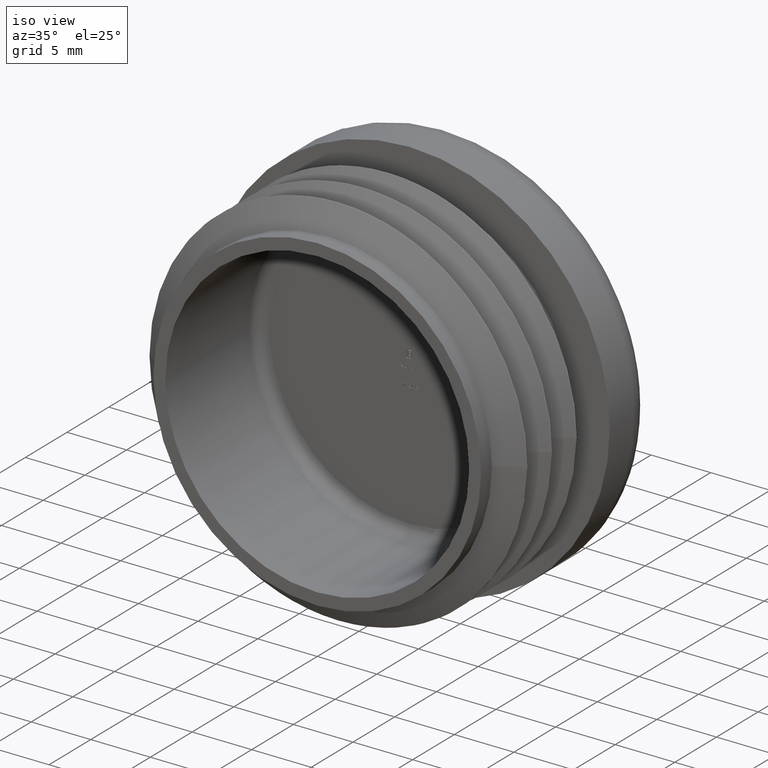
[diagram: clean part render]
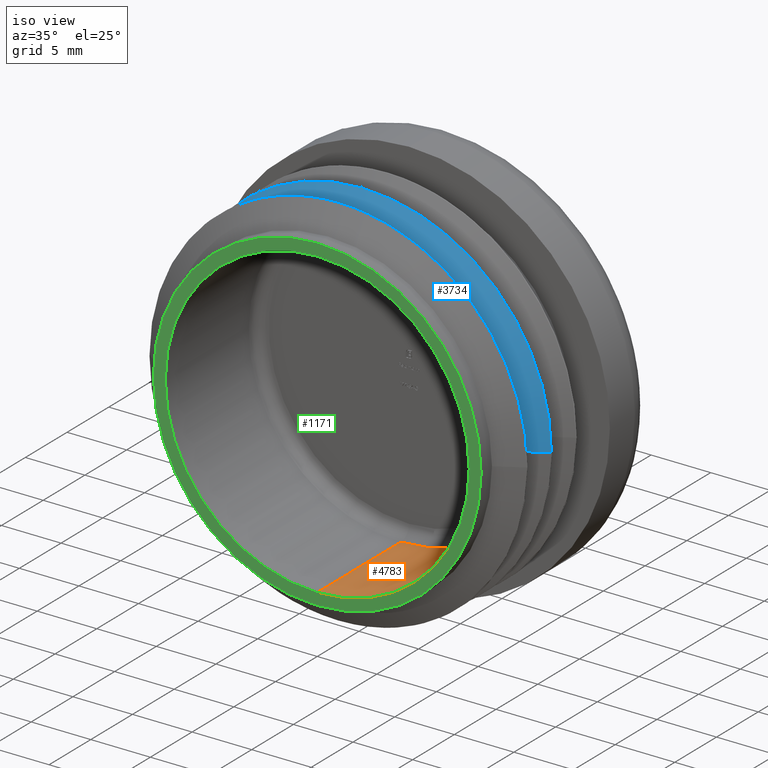
[diagram: same view with three faces highlighted in distinct colors, each labeled with its STEP entity id]
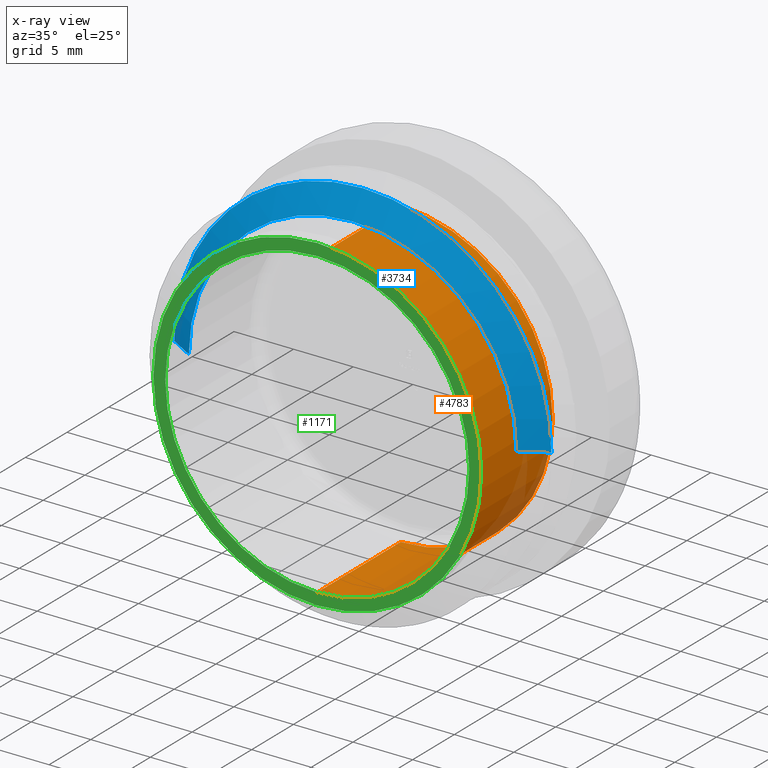
[diagram: x-ray of the same camera — body ghosted, the three highlighted faces saturated]
A machine part, iso view with three faces highlighted in distinct colors.
The next image is the same camera in x-ray (body ghosted, the three faces saturated) — at least one of them is partly hidden behind the body in this view.
Their STEP definitions:

[orange] entity #4783 — the highlighted cylindrical surface (partial cylindrical patch) has radius 12.75 mm, axis along (-0, -1, -0).
#286 = ORIENTED_EDGE ( 'NONE', *, *, #6513, .T. ) ;
#888 = VECTOR ( 'NONE', #9830, 1000.000000000000000 ) ;
#1442 = AXIS2_PLACEMENT_3D ( 'NONE', #3928, #4892, #8704 ) ;
#1631 = LINE ( 'NONE', #2034, #888 ) ;
#1756 = DIRECTION ( 'NONE',  ( -0.000000000000000000, -1.000000000000000000, -0.000000000000000000 ) ) ;
#2034 = CARTESIAN_POINT ( 'NONE',  ( 1.561424668912875111E-15, 11.00000000000000000, 12.75000000000000000 ) ) ;
#2058 = EDGE_CURVE ( 'NONE', #2654, #7031, #1631, .T. ) ;
#2654 = VERTEX_POINT ( 'NONE', #8931 ) ;
#2822 = VECTOR ( 'NONE', #5797, 1000.000000000000000 ) ;
#3169 = VERTEX_POINT ( 'NONE', #6791 ) ;
#3928 = CARTESIAN_POINT ( 'NONE',  ( 0.000000000000000000, 9.999999999999998224, 0.000000000000000000 ) ) ;
#4407 = CIRCLE ( 'NONE', #7420, 12.75000000000000000 ) ;
#4448 = CYLINDRICAL_SURFACE ( 'NONE', #10615, 12.75000000000000000 ) ;
#4783 = ADVANCED_FACE ( 'NONE', ( #11050 ), #4448, .F. ) ;
#4892 = DIRECTION ( 'NONE',  ( 0.000000000000000000, 1.000000000000000000, 0.000000000000000000 ) ) ;
#4925 = DIRECTION ( 'NONE',  ( 0.000000000000000000, 0.000000000000000000, -1.000000000000000000 ) ) ;
#5058 = CARTESIAN_POINT ( 'NONE',  ( 0.000000000000000000, 11.00000000000000000, 0.000000000000000000 ) ) ;
#5083 = ORIENTED_EDGE ( 'NONE', *, *, #10651, .T. ) ;
#5649 = EDGE_LOOP ( 'NONE', ( #6952, #286, #5083, #12298 ) ) ;
#5797 = DIRECTION ( 'NONE',  ( -0.000000000000000000, -1.000000000000000000, -0.000000000000000000 ) ) ;
#6513 = EDGE_CURVE ( 'NONE', #2654, #10774, #11608, .T. ) ;
#6695 = DIRECTION ( 'NONE',  ( 0.000000000000000000, 0.000000000000000000, -1.000000000000000000 ) ) ;
#6791 = CARTESIAN_POINT ( 'NONE',  ( 0.000000000000000000, 0.000000000000000000, -12.75000000000000000 ) ) ;
#6951 = DIRECTION ( 'NONE',  ( -0.000000000000000000, -1.000000000000000000, -0.000000000000000000 ) ) ;
#6952 = ORIENTED_EDGE ( 'NONE', *, *, #2058, .F. ) ;
#7031 = VERTEX_POINT ( 'NONE', #9066 ) ;
#7096 = CARTESIAN_POINT ( 'NONE',  ( 0.000000000000000000, 9.999999999999998224, -12.75000000000000000 ) ) ;
#7420 = AXIS2_PLACEMENT_3D ( 'NONE', #12189, #1756, #6695 ) ;
#7686 = LINE ( 'NONE', #11511, #2822 ) ;
#8704 = DIRECTION ( 'NONE',  ( 0.000000000000000000, 0.000000000000000000, -1.000000000000000000 ) ) ;
#8709 = EDGE_CURVE ( 'NONE', #3169, #7031, #4407, .T. ) ;
#8931 = CARTESIAN_POINT ( 'NONE',  ( 1.561424668912875111E-15, 9.999999999999998224, 12.75000000000000000 ) ) ;
#9066 = CARTESIAN_POINT ( 'NONE',  ( 1.561424668912875111E-15, 0.000000000000000000, 12.75000000000000000 ) ) ;
#9830 = DIRECTION ( 'NONE',  ( -0.000000000000000000, -1.000000000000000000, -0.000000000000000000 ) ) ;
#10615 = AXIS2_PLACEMENT_3D ( 'NONE', #5058, #6951, #4925 ) ;
#10651 = EDGE_CURVE ( 'NONE', #10774, #3169, #7686, .T. ) ;
#10774 = VERTEX_POINT ( 'NONE', #7096 ) ;
#11050 = FACE_OUTER_BOUND ( 'NONE', #5649, .T. ) ;
#11511 = CARTESIAN_POINT ( 'NONE',  ( 0.000000000000000000, 11.00000000000000000, -12.75000000000000000 ) ) ;
#11608 = CIRCLE ( 'NONE', #1442, 12.75000000000000000 ) ;
#12189 = CARTESIAN_POINT ( 'NONE',  ( 0.000000000000000000, 0.000000000000000000, 0.000000000000000000 ) ) ;
#12298 = ORIENTED_EDGE ( 'NONE', *, *, #8709, .T. ) ;

[blue] entity #3734 — the highlighted conical surface has half-angle 59.82 deg.
#530 = DIRECTION ( 'NONE',  ( 1.000000000000000000, 1.046854160773551088E-14, 0.000000000000000000 ) ) ;
#993 = CARTESIAN_POINT ( 'NONE',  ( 15.82513574129265344, 5.456777384280280252, 1.938020183164649481E-15 ) ) ;
#1030 = VERTEX_POINT ( 'NONE', #993 ) ;
#1084 = EDGE_CURVE ( 'NONE', #3238, #7196, #6782, .T. ) ;
#1501 = AXIS2_PLACEMENT_3D ( 'NONE', #8074, #7084, #530 ) ;
#1662 = DIRECTION ( 'NONE',  ( -0.8644523143980462621, 0.5027148258524523072, 0.000000000000000000 ) ) ;
#1675 = DIRECTION ( 'NONE',  ( -1.047444401652940164E-14, 1.000000000000000000, 0.000000000000000000 ) ) ;
#1819 = EDGE_CURVE ( 'NONE', #6555, #3933, #7965, .T. ) ;
#2162 = LINE ( 'NONE', #9553, #8636 ) ;
#2333 = CARTESIAN_POINT ( 'NONE',  ( -15.82513574129276357, 5.456777384279948961, 0.000000000000000000 ) ) ;
#2737 = AXIS2_PLACEMENT_3D ( 'NONE', #8441, #1675, #8402 ) ;
#2811 = VECTOR ( 'NONE', #1662, 999.9999999999998863 ) ;
#3044 = EDGE_CURVE ( 'NONE', #1030, #3933, #5693, .T. ) ;
#3093 = ORIENTED_EDGE ( 'NONE', *, *, #1084, .T. ) ;
#3238 = VERTEX_POINT ( 'NONE', #12062 ) ;
#3248 = EDGE_CURVE ( 'NONE', #6555, #3238, #12207, .T. ) ;
#3323 = ORIENTED_EDGE ( 'NONE', *, *, #3044, .T. ) ;
#3699 = CARTESIAN_POINT ( 'NONE',  ( 13.74999999999995381, 4.250000000000116351, 1.810954765996130067E-15 ) ) ;
#3734 = ADVANCED_FACE ( 'NONE', ( #6430 ), #11914, .T. ) ;
#3770 = ORIENTED_EDGE ( 'NONE', *, *, #6706, .T. ) ;
#3903 = EDGE_LOOP ( 'NONE', ( #3093, #3770, #3323, #4879, #12001 ) ) ;
#3933 = VERTEX_POINT ( 'NONE', #2333 ) ;
#4879 = ORIENTED_EDGE ( 'NONE', *, *, #1819, .F. ) ;
#5693 = CIRCLE ( 'NONE', #1501, 15.82513574129270850 ) ;
#6430 = FACE_OUTER_BOUND ( 'NONE', #3903, .T. ) ;
#6555 = VERTEX_POINT ( 'NONE', #9715 ) ;
#6706 = EDGE_CURVE ( 'NONE', #7196, #1030, #2162, .T. ) ;
#6782 = CIRCLE ( 'NONE', #10109, 13.74999999999999822 ) ;
#7084 = DIRECTION ( 'NONE',  ( 1.047444401652940164E-14, -1.000000000000000000, -0.000000000000000000 ) ) ;
#7196 = VERTEX_POINT ( 'NONE', #3699 ) ;
#7290 = CARTESIAN_POINT ( 'NONE',  ( -4.451638707024966945E-14, 4.249999999999972466, 0.000000000000000000 ) ) ;
#7965 = LINE ( 'NONE', #12173, #2811 ) ;
#8074 = CARTESIAN_POINT ( 'NONE',  ( -5.715670922230581081E-14, 5.456777384280115051, 0.000000000000000000 ) ) ;
#8343 = AXIS2_PLACEMENT_3D ( 'NONE', #9736, #8638, #10745 ) ;
#8402 = DIRECTION ( 'NONE',  ( -1.000000000000000000, -1.047142170953272746E-14, 0.000000000000000000 ) ) ;
#8441 = CARTESIAN_POINT ( 'NONE',  ( -4.451638707024966945E-14, 4.249999999999972466, 0.000000000000000000 ) ) ;
#8636 = VECTOR ( 'NONE', #8706, 1000.000000000000114 ) ;
#8638 = DIRECTION ( 'NONE',  ( -1.047444401652940164E-14, 1.000000000000000000, 0.000000000000000000 ) ) ;
#8706 = DIRECTION ( 'NONE',  ( 0.8644523143980356039, 0.5027148258524705149, 1.058648759843082137E-16 ) ) ;
#9037 = DIRECTION ( 'NONE',  ( -1.047444401652940164E-14, 1.000000000000000000, 0.000000000000000000 ) ) ;
#9553 = CARTESIAN_POINT ( 'NONE',  ( 13.75000000000003020, 4.250000000000160760, 1.683889348827619923E-15 ) ) ;
#9715 = CARTESIAN_POINT ( 'NONE',  ( -13.75000000000004263, 4.249999999999828582, 0.000000000000000000 ) ) ;
#9736 = CARTESIAN_POINT ( 'NONE',  ( -4.451638707025013645E-14, 4.250000000000016875, 0.000000000000000000 ) ) ;
#10109 = AXIS2_PLACEMENT_3D ( 'NONE', #7290, #9037, #10134 ) ;
#10134 = DIRECTION ( 'NONE',  ( -1.000000000000000000, -1.047142170953272746E-14, 0.000000000000000000 ) ) ;
#10745 = DIRECTION ( 'NONE',  ( -1.000000000000000000, -1.047142170953266909E-14, 0.000000000000000000 ) ) ;
#11914 = CONICAL_SURFACE ( 'NONE', #8343, 13.75000000000007461, 1.044059893199998701 ) ;
#12001 = ORIENTED_EDGE ( 'NONE', *, *, #3248, .T. ) ;
#12062 = CARTESIAN_POINT ( 'NONE',  ( 1.683889348826099985E-15, 4.249999999999972466, 13.74999999999999822 ) ) ;
#12173 = CARTESIAN_POINT ( 'NONE',  ( -13.75000000000011902, 4.249999999999872990, 0.000000000000000000 ) ) ;
#12207 = CIRCLE ( 'NONE', #2737, 13.74999999999999822 ) ;

[green] entity #1171 — the highlighted planar face has unit normal (0, -1, -0).
#454 = DIRECTION ( 'NONE',  ( -0.000000000000000000, -1.000000000000000000, -0.000000000000000000 ) ) ;
#1171 = ADVANCED_FACE ( 'NONE', ( #1947, #3882 ), #2455, .T. ) ;
#1756 = DIRECTION ( 'NONE',  ( -0.000000000000000000, -1.000000000000000000, -0.000000000000000000 ) ) ;
#1947 = FACE_OUTER_BOUND ( 'NONE', #4069, .T. ) ;
#2455 = PLANE ( 'NONE',  #10754 ) ;
#2732 = CARTESIAN_POINT ( 'NONE',  ( 0.000000000000000000, 0.000000000000000000, -13.75000000000000000 ) ) ;
#2778 = CARTESIAN_POINT ( 'NONE',  ( 0.000000000000000000, 0.000000000000000000, 0.000000000000000000 ) ) ;
#2914 = DIRECTION ( 'NONE',  ( 0.000000000000000000, 0.000000000000000000, -1.000000000000000000 ) ) ;
#2932 = CARTESIAN_POINT ( 'NONE',  ( 0.000000000000000000, 0.000000000000000000, 0.000000000000000000 ) ) ;
#2994 = VERTEX_POINT ( 'NONE', #7872 ) ;
#3169 = VERTEX_POINT ( 'NONE', #6791 ) ;
#3882 = FACE_BOUND ( 'NONE', #6760, .T. ) ;
#3899 = DIRECTION ( 'NONE',  ( 0.000000000000000000, 0.000000000000000000, -1.000000000000000000 ) ) ;
#4069 = EDGE_LOOP ( 'NONE', ( #11863, #5329 ) ) ;
#4407 = CIRCLE ( 'NONE', #7420, 12.75000000000000000 ) ;
#4901 = CIRCLE ( 'NONE', #7076, 13.75000000000000000 ) ;
#5201 = DIRECTION ( 'NONE',  ( 0.000000000000000000, 0.000000000000000000, -1.000000000000000000 ) ) ;
#5329 = ORIENTED_EDGE ( 'NONE', *, *, #8744, .T. ) ;
#5603 = DIRECTION ( 'NONE',  ( -0.000000000000000000, -1.000000000000000000, -0.000000000000000000 ) ) ;
#6030 = AXIS2_PLACEMENT_3D ( 'NONE', #8784, #454, #2914 ) ;
#6530 = DIRECTION ( 'NONE',  ( 0.000000000000000000, 0.000000000000000000, -1.000000000000000000 ) ) ;
#6677 = DIRECTION ( 'NONE',  ( -0.000000000000000000, -1.000000000000000000, -0.000000000000000000 ) ) ;
#6695 = DIRECTION ( 'NONE',  ( 0.000000000000000000, 0.000000000000000000, -1.000000000000000000 ) ) ;
#6760 = EDGE_LOOP ( 'NONE', ( #10580, #10507 ) ) ;
#6791 = CARTESIAN_POINT ( 'NONE',  ( 0.000000000000000000, 0.000000000000000000, -12.75000000000000000 ) ) ;
#7031 = VERTEX_POINT ( 'NONE', #9066 ) ;
#7076 = AXIS2_PLACEMENT_3D ( 'NONE', #2932, #6677, #3899 ) ;
#7420 = AXIS2_PLACEMENT_3D ( 'NONE', #12189, #1756, #6695 ) ;
#7530 = VERTEX_POINT ( 'NONE', #2732 ) ;
#7872 = CARTESIAN_POINT ( 'NONE',  ( 1.683889348827610851E-15, 0.000000000000000000, 13.75000000000000178 ) ) ;
#8709 = EDGE_CURVE ( 'NONE', #3169, #7031, #4407, .T. ) ;
#8744 = EDGE_CURVE ( 'NONE', #2994, #7530, #8767, .T. ) ;
#8767 = CIRCLE ( 'NONE', #9332, 13.75000000000000000 ) ;
#8784 = CARTESIAN_POINT ( 'NONE',  ( 0.000000000000000000, 0.000000000000000000, 0.000000000000000000 ) ) ;
#9066 = CARTESIAN_POINT ( 'NONE',  ( 1.561424668912875111E-15, 0.000000000000000000, 12.75000000000000000 ) ) ;
#9332 = AXIS2_PLACEMENT_3D ( 'NONE', #2778, #5603, #6530 ) ;
#9971 = CARTESIAN_POINT ( 'NONE',  ( 13.75000000000000000, 6.123233995736761105E-17, 0.000000000000000000 ) ) ;
#10507 = ORIENTED_EDGE ( 'NONE', *, *, #11318, .F. ) ;
#10580 = ORIENTED_EDGE ( 'NONE', *, *, #8709, .F. ) ;
#10754 = AXIS2_PLACEMENT_3D ( 'NONE', #9971, #10924, #5201 ) ;
#10924 = DIRECTION ( 'NONE',  ( 0.000000000000000000, -1.000000000000000000, -0.000000000000000000 ) ) ;
#11033 = CIRCLE ( 'NONE', #6030, 12.75000000000000000 ) ;
#11318 = EDGE_CURVE ( 'NONE', #7031, #3169, #11033, .T. ) ;
#11806 = EDGE_CURVE ( 'NONE', #7530, #2994, #4901, .T. ) ;
#11863 = ORIENTED_EDGE ( 'NONE', *, *, #11806, .T. ) ;
#12189 = CARTESIAN_POINT ( 'NONE',  ( 0.000000000000000000, 0.000000000000000000, 0.000000000000000000 ) ) ;